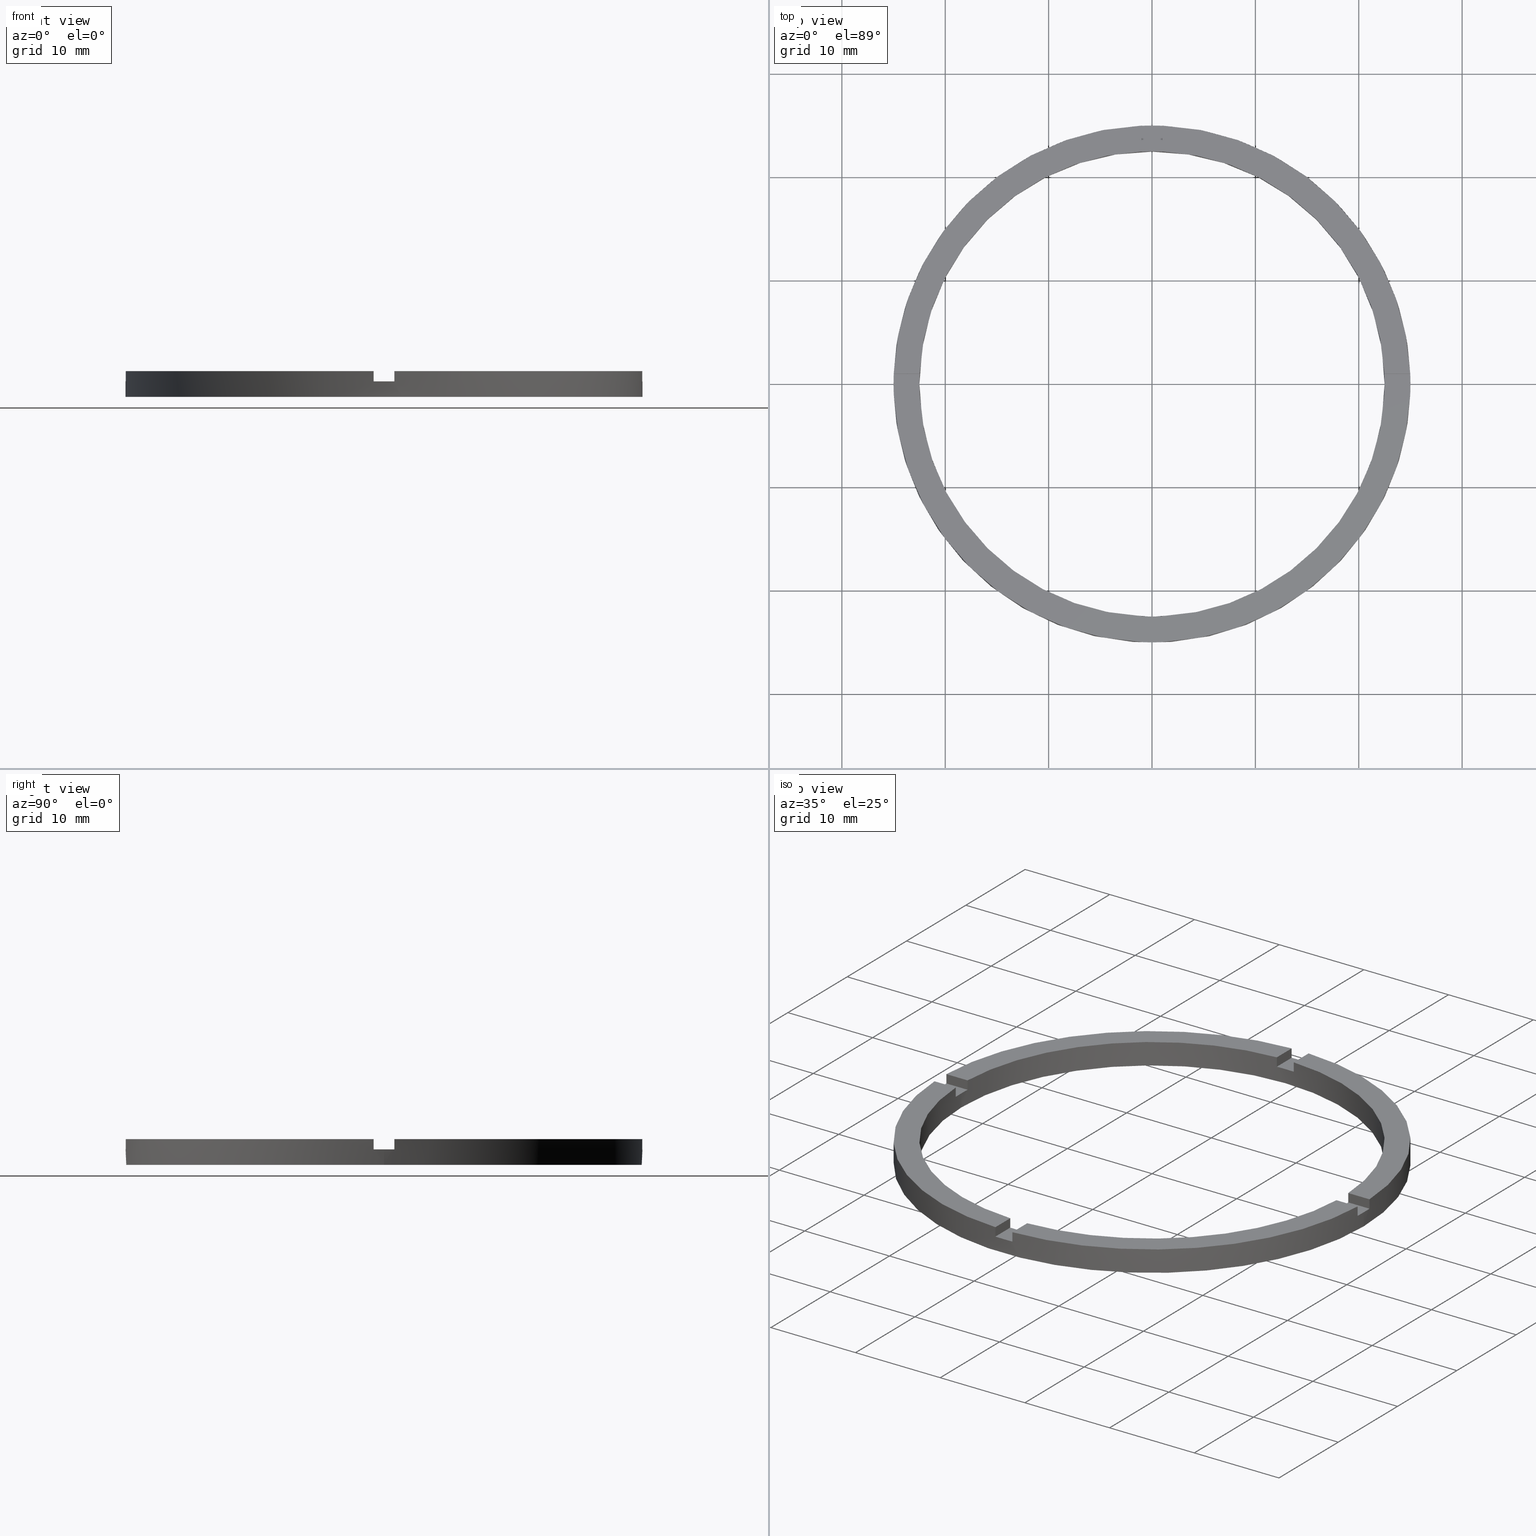
[diagram: canonical four-view strip — front | top / right | iso, engineering-drawing reading convention]
A machine part, canonical four-view strip (front | top / right | iso — engineering-drawing reading convention). The complete STEP part file that produces these views, byte-faithful:
ISO-10303-21;
HEADER;
FILE_DESCRIPTION (( 'STEP AP203' ),
    '1' );
FILE_NAME ('514105.step',
    '2024-12-26T02:37:58',
    ( 'MSI' ),
    ( '' ),
    'SwSTEP 2.0',
    'SolidWorks 2020',
    '' );
FILE_SCHEMA (( 'CONFIG_CONTROL_DESIGN' ));
ENDSEC;

DATA;
#1 = VERTEX_POINT ( 'NONE', #306 ) ;
#2 = CARTESIAN_POINT ( 'NONE',  ( -22.47776679298902636, 0.9999999999999744649, 2.500000000000000000 ) ) ;
#3 = DIRECTION ( 'NONE',  ( -0.000000000000000000, -0.000000000000000000, -1.000000000000000000 ) ) ;
#4 = DIRECTION ( 'NONE',  ( 0.000000000000000000, -0.000000000000000000, 1.000000000000000000 ) ) ;
#5 = CARTESIAN_POINT ( 'NONE',  ( 24.97999199359360034, 0.9999999999998425704, 2.500000000000000000 ) ) ;
#6 = ORIENTED_EDGE ( 'NONE', *, *, #239, .F. ) ;
#7 = VERTEX_POINT ( 'NONE', #402 ) ;
#8 = AXIS2_PLACEMENT_3D ( 'NONE', #136, #207, #53 ) ;
#9 = ORIENTED_EDGE ( 'NONE', *, *, #651, .F. ) ;
#10 = EDGE_CURVE ( 'NONE', #615, #525, #723, .T. ) ;
#11 = CARTESIAN_POINT ( 'NONE',  ( 0.9999999999999740208, 22.47776679298902636, 2.500000000000000000 ) ) ;
#12 = DIRECTION ( 'NONE',  ( 0.000000000000000000, 0.000000000000000000, 1.000000000000000000 ) ) ;
#13 = ORIENTED_EDGE ( 'NONE', *, *, #317, .F. ) ;
#14 = EDGE_LOOP ( 'NONE', ( #543, #728, #6, #285 ) ) ;
#15 = DIRECTION ( 'NONE',  ( 0.000000000000000000, 0.000000000000000000, 1.000000000000000000 ) ) ;
#16 = AXIS2_PLACEMENT_3D ( 'NONE', #551, #469, #712 ) ;
#17 = ORIENTED_EDGE ( 'NONE', *, *, #262, .T. ) ;
#18 = ORIENTED_EDGE ( 'NONE', *, *, #31, .F. ) ;
#19 = ORIENTED_EDGE ( 'NONE', *, *, #85, .F. ) ;
#20 = AXIS2_PLACEMENT_3D ( 'NONE', #597, #776, #622 ) ;
#21 = CARTESIAN_POINT ( 'NONE',  ( 25.00000000000000000, 3.061616997868383043E-15, 2.500000000000000000 ) ) ;
#22 = ORIENTED_EDGE ( 'NONE', *, *, #344, .T. ) ;
#23 = PERSON_AND_ORGANIZATION_ROLE ( 'creator' ) ;
#24 = ORIENTED_EDGE ( 'NONE', *, *, #239, .T. ) ;
#25 = CARTESIAN_POINT ( 'NONE',  ( 0.000000000000000000, 0.000000000000000000, 2.500000000000000000 ) ) ;
#26 = DIRECTION ( 'NONE',  ( 1.000000000000000000, 0.000000000000000000, 0.000000000000000000 ) ) ;
#27 = CARTESIAN_POINT ( 'NONE',  ( 0.000000000000000000, 0.000000000000000000, 2.500000000000000000 ) ) ;
#28 = PERSON_AND_ORGANIZATION_ROLE ( 'design_owner' ) ;
#29 = CARTESIAN_POINT ( 'NONE',  ( -22.47776679298902636, -1.000000000000025535, 2.500000000000000000 ) ) ;
#30 = ADVANCED_FACE ( 'NONE', ( #714 ), #198, .F. ) ;
#31 = EDGE_CURVE ( 'NONE', #57, #7, #452, .T. ) ;
#32 = CARTESIAN_POINT ( 'NONE',  ( 0.000000000000000000, 0.000000000000000000, 2.500000000000000000 ) ) ;
#33 = CARTESIAN_POINT ( 'NONE',  ( -15.00000000000018652, -1.000000000000024203, 1.500000000000000000 ) ) ;
#34 = CC_DESIGN_PERSON_AND_ORGANIZATION_ASSIGNMENT ( #642, #28, ( #559 ) ) ;
#35 = DIRECTION ( 'NONE',  ( 0.000000000000000000, 0.000000000000000000, 1.000000000000000000 ) ) ;
#36 = CARTESIAN_POINT ( 'NONE',  ( 0.9999999999999740208, 22.47776679298902636, 2.500000000000000000 ) ) ;
#37 = ORIENTED_EDGE ( 'NONE', *, *, #39, .F. ) ;
#38 = ORIENTED_EDGE ( 'NONE', *, *, #618, .T. ) ;
#39 = EDGE_CURVE ( 'NONE', #1, #451, #742, .T. ) ;
#40 = ORIENTED_EDGE ( 'NONE', *, *, #541, .T. ) ;
#41 = CARTESIAN_POINT ( 'NONE',  ( -15.00000000000018652, 0.9999999999999756861, 1.500000000000000000 ) ) ;
#42 = ORIENTED_EDGE ( 'NONE', *, *, #361, .T. ) ;
#43 = ORIENTED_EDGE ( 'NONE', *, *, #730, .F. ) ;
#44 = AXIS2_PLACEMENT_3D ( 'NONE', #357, #605, #600 ) ;
#45 = ORIENTED_EDGE ( 'NONE', *, *, #378, .F. ) ;
#46 = AXIS2_PLACEMENT_3D ( 'NONE', #516, #263, #433 ) ;
#47 = DIRECTION ( 'NONE',  ( 0.000000000000000000, 0.000000000000000000, 1.000000000000000000 ) ) ;
#48 = CARTESIAN_POINT ( 'NONE',  ( 24.97999199359358968, -1.000000000000157430, 1.500000000000000000 ) ) ;
#49 = ADVANCED_FACE ( 'NONE', ( #715 ), #102, .T. ) ;
#50 = EDGE_LOOP ( 'NONE', ( #386, #485, #430, #413 ) ) ;
#51 = ORIENTED_EDGE ( 'NONE', *, *, #321, .F. ) ;
#52 = EDGE_CURVE ( 'NONE', #7, #375, #731, .T. ) ;
#53 = DIRECTION ( 'NONE',  ( 1.000000000000000000, 0.000000000000000000, -0.000000000000000000 ) ) ;
#54 = AXIS2_PLACEMENT_3D ( 'NONE', #277, #686, #630 ) ;
#55 = ORIENTED_EDGE ( 'NONE', *, *, #10, .T. ) ;
#56 = PLANE ( 'NONE',  #484 ) ;
#57 = VERTEX_POINT ( 'NONE', #351 ) ;
#58 = CARTESIAN_POINT ( 'NONE',  ( 0.9999999999998395728, -24.97999199359360034, 2.500000000000000000 ) ) ;
#59 = DIRECTION ( 'NONE',  ( -1.000000000000000000, -4.336808689942018352E-17, -0.000000000000000000 ) ) ;
#60 = APPROVAL ( #726, 'δָ��' ) ;
#61 = ORIENTED_EDGE ( 'NONE', *, *, #571, .F. ) ;
#62 = DIRECTION ( 'NONE',  ( 0.000000000000000000, 0.000000000000000000, 1.000000000000000000 ) ) ;
#63 = DIRECTION ( 'NONE',  ( 0.000000000000000000, 0.000000000000000000, 1.000000000000000000 ) ) ;
#64 = DIRECTION ( 'NONE',  ( 1.000000000000000000, 0.000000000000000000, 0.000000000000000000 ) ) ;
#65 = EDGE_CURVE ( 'NONE', #685, #372, #734, .T. ) ;
#66 = PERSON_AND_ORGANIZATION_ROLE ( 'design_supplier' ) ;
#67 = AXIS2_PLACEMENT_3D ( 'NONE', #25, #653, #518 ) ;
#68 = CARTESIAN_POINT ( 'NONE',  ( 22.47776679298901925, -1.000000000000157652, 2.500000000000000000 ) ) ;
#69 = EDGE_CURVE ( 'NONE', #508, #155, #720, .T. ) ;
#70 = ADVANCED_FACE ( 'NONE', ( #204, #190 ), #56, .F. ) ;
#71 = CARTESIAN_POINT ( 'NONE',  ( 0.9999999999998382405, -15.00000000000018119, 2.500000000000000000 ) ) ;
#72 = EDGE_CURVE ( 'NONE', #159, #161, #192, .T. ) ;
#73 = CARTESIAN_POINT ( 'NONE',  ( -1.000000000000025979, 24.97999199359359679, 2.500000000000000000 ) ) ;
#74 = AXIS2_PLACEMENT_3D ( 'NONE', #340, #468, #626 ) ;
#75 = ORIENTED_EDGE ( 'NONE', *, *, #578, .F. ) ;
#76 = DIRECTION ( 'NONE',  ( 1.000000000000000000, 0.000000000000000000, 0.000000000000000000 ) ) ;
#77 = DIRECTION ( 'NONE',  ( -0.000000000000000000, -0.000000000000000000, -1.000000000000000000 ) ) ;
#78 = CC_DESIGN_PERSON_AND_ORGANIZATION_ASSIGNMENT ( #132, #23, ( #749 ) ) ;
#79 = DIRECTION ( 'NONE',  ( 0.000000000000000000, 0.000000000000000000, 1.000000000000000000 ) ) ;
#80 = DIRECTION ( 'NONE',  ( -0.000000000000000000, 0.000000000000000000, 1.000000000000000000 ) ) ;
#81 = CARTESIAN_POINT ( 'NONE',  ( 0.000000000000000000, 0.000000000000000000, 1.500000000000000000 ) ) ;
#82 = ORIENTED_EDGE ( 'NONE', *, *, #251, .T. ) ;
#83 = CARTESIAN_POINT ( 'NONE',  ( 0.9999999999998391287, -22.47776679298903346, 1.500000000000000000 ) ) ;
#84 = DIRECTION ( 'NONE',  ( 0.000000000000000000, 0.000000000000000000, 1.000000000000000000 ) ) ;
#85 = EDGE_CURVE ( 'NONE', #525, #295, #477, .T. ) ;
#86 = EDGE_CURVE ( 'NONE', #159, #110, #504, .T. ) ;
#87 = CARTESIAN_POINT ( 'NONE',  ( -1.000000000000025979, 24.97999199359359679, 1.500000000000000000 ) ) ;
#88 = CARTESIAN_POINT ( 'NONE',  ( -25.00000000000000000, 0.000000000000000000, 2.500000000000000000 ) ) ;
#89 = CARTESIAN_POINT ( 'NONE',  ( 24.97999199359360034, 0.9999999999998425704, 2.500000000000000000 ) ) ;
#90 = AXIS2_PLACEMENT_3D ( 'NONE', #32, #679, #612 ) ;
#91 = EDGE_CURVE ( 'NONE', #410, #457, #235, .T. ) ;
#92 = CARTESIAN_POINT ( 'NONE',  ( -24.97999199359359679, 0.9999999999999740208, 1.500000000000000000 ) ) ;
#93 = DIRECTION ( 'NONE',  ( -0.000000000000000000, -0.000000000000000000, -1.000000000000000000 ) ) ;
#94 = AXIS2_PLACEMENT_3D ( 'NONE', #620, #127, #727 ) ;
#95 = EDGE_CURVE ( 'NONE', #586, #234, #506, .T. ) ;
#96 = CARTESIAN_POINT ( 'NONE',  ( 0.000000000000000000, 0.000000000000000000, 0.000000000000000000 ) ) ;
#97 = DIRECTION ( 'NONE',  ( 1.000000000000000000, 0.000000000000000000, 0.000000000000000000 ) ) ;
#98 = CARTESIAN_POINT ( 'NONE',  ( 0.000000000000000000, 0.000000000000000000, 1.500000000000000000 ) ) ;
#99 = DIRECTION ( 'NONE',  ( 1.000000000000000000, 0.000000000000000000, 0.000000000000000000 ) ) ;
#100 = APPROVAL ( #313, 'δָ��' ) ;
#101 = CARTESIAN_POINT ( 'NONE',  ( -24.97999199359359679, 0.9999999999999740208, 2.500000000000000000 ) ) ;
#102 = PLANE ( 'NONE',  #288 ) ;
#103 = SECURITY_CLASSIFICATION_LEVEL ( 'unclassified' ) ;
#104 = CARTESIAN_POINT ( 'NONE',  ( -1.000000000000160982, -22.47776679298901925, 2.500000000000000000 ) ) ;
#105 = ADVANCED_FACE ( 'NONE', ( #496 ), #591, .T. ) ;
#106 = DIRECTION ( 'NONE',  ( 0.000000000000000000, 0.000000000000000000, 1.000000000000000000 ) ) ;
#107 = EDGE_LOOP ( 'NONE', ( #18, #690, #124, #213, #200, #215, #648, #164, #445, #455, #533, #271 ) ) ;
#108 = EDGE_CURVE ( 'NONE', #261, #254, #764, .T. ) ;
#109 = EDGE_LOOP ( 'NONE', ( #538, #266, #708, #19, #721, #435, #570, #274, #697, #694, #458, #267 ) ) ;
#110 = VERTEX_POINT ( 'NONE', #779 ) ;
#111 = VERTEX_POINT ( 'NONE', #766 ) ;
#112 = EDGE_LOOP ( 'NONE', ( #195, #169, #534, #174, #9, #209, #467, #188, #61, #55, #717, #75 ) ) ;
#113 = AXIS2_PLACEMENT_3D ( 'NONE', #773, #80, #362 ) ;
#114 = APPROVAL_DATE_TIME ( #645, #283 ) ;
#115 =( GEOMETRIC_REPRESENTATION_CONTEXT ( 3 ) GLOBAL_UNCERTAINTY_ASSIGNED_CONTEXT ( ( #352 ) ) GLOBAL_UNIT_ASSIGNED_CONTEXT ( ( #252, #257, #272 ) ) REPRESENTATION_CONTEXT ( 'NONE', 'WORKASPACE' ) );
#116 = CARTESIAN_POINT ( 'NONE',  ( 14.99999999999999645, 0.9999999999998421263, 1.500000000000000000 ) ) ;
#117 = APPROVAL_PERSON_ORGANIZATION ( #408, #60, #611 ) ;
#118 = CARTESIAN_POINT ( 'NONE',  ( 0.000000000000000000, 0.000000000000000000, 2.500000000000000000 ) ) ;
#119 = DIRECTION ( 'NONE',  ( 0.000000000000000000, 0.000000000000000000, 1.000000000000000000 ) ) ;
#120 = COORDINATED_UNIVERSAL_TIME_OFFSET ( 8, 0, .AHEAD. ) ;
#121 = AXIS2_PLACEMENT_3D ( 'NONE', #373, #470, #147 ) ;
#122 = APPROVAL_DATE_TIME ( #385, #100 ) ;
#123 = DIRECTION ( 'NONE',  ( 1.000000000000000000, 0.000000000000000000, 0.000000000000000000 ) ) ;
#124 = ORIENTED_EDGE ( 'NONE', *, *, #327, .T. ) ;
#125 = PERSON_AND_ORGANIZATION ( #377, #129 ) ;
#126 = DIRECTION ( 'NONE',  ( 0.000000000000000000, -0.000000000000000000, 1.000000000000000000 ) ) ;
#127 = DIRECTION ( 'NONE',  ( 1.734723475976807341E-16, -1.000000000000000000, 0.000000000000000000 ) ) ;
#128 = DATE_AND_TIME ( #652, #138 ) ;
#129 = ORGANIZATION ( 'δָ��', 'δָ��', '' ) ;
#130 = EDGE_CURVE ( 'NONE', #159, #644, #756, .T. ) ;
#131 = VECTOR ( 'NONE', #444, 1000.000000000000000 ) ;
#132 = PERSON_AND_ORGANIZATION ( #377, #129 ) ;
#133 = CIRCLE ( 'NONE', #769, 25.00000000000000000 ) ;
#134 = SHAPE_DEFINITION_REPRESENTATION ( #409, #396 ) ;
#135 = CIRCLE ( 'NONE', #325, 22.50000000000000355 ) ;
#136 = CARTESIAN_POINT ( 'NONE',  ( 0.000000000000000000, 0.000000000000000000, 1.500000000000000000 ) ) ;
#137 = LINE ( 'NONE', #226, #403 ) ;
#138 = LOCAL_TIME ( 10, 37, 58.00000000000000000, #671 ) ;
#139 = FACE_OUTER_BOUND ( 'NONE', #242, .T. ) ;
#140 = VECTOR ( 'NONE', #282, 1000.000000000000000 ) ;
#141 = CALENDAR_DATE ( 2024, 26, 12 ) ;
#142 = VERTEX_POINT ( 'NONE', #48 ) ;
#143 = CARTESIAN_POINT ( 'NONE',  ( -1.000000000000025979, 22.47776679298902636, 1.500000000000000000 ) ) ;
#144 = FACE_OUTER_BOUND ( 'NONE', #566, .T. ) ;
#145 = PLANE ( 'NONE',  #428 ) ;
#146 = COORDINATED_UNIVERSAL_TIME_OFFSET ( 8, 0, .AHEAD. ) ;
#147 = DIRECTION ( 'NONE',  ( -1.000000000000000000, 0.000000000000000000, 0.000000000000000000 ) ) ;
#148 = VECTOR ( 'NONE', #157, 1000.000000000000000 ) ;
#149 = LOCAL_TIME ( 10, 37, 58.00000000000000000, #120 ) ;
#150 = VECTOR ( 'NONE', #47, 1000.000000000000000 ) ;
#151 = PERSON_AND_ORGANIZATION ( #377, #129 ) ;
#152 = EDGE_CURVE ( 'NONE', #586, #703, #233, .T. ) ;
#153 = FACE_OUTER_BOUND ( 'NONE', #189, .T. ) ;
#154 = LOCAL_TIME ( 10, 37, 58.00000000000000000, #665 ) ;
#155 = VERTEX_POINT ( 'NONE', #775 ) ;
#156 = CIRCLE ( 'NONE', #584, 25.00000000000000000 ) ;
#157 = DIRECTION ( 'NONE',  ( -0.000000000000000000, -0.000000000000000000, -1.000000000000000000 ) ) ;
#158 = CARTESIAN_POINT ( 'NONE',  ( -22.50000000000000355, 0.000000000000000000, 2.500000000000000000 ) ) ;
#159 = VERTEX_POINT ( 'NONE', #89 ) ;
#160 = VECTOR ( 'NONE', #762, 1000.000000000000000 ) ;
#161 = VERTEX_POINT ( 'NONE', #380 ) ;
#162 = FACE_OUTER_BOUND ( 'NONE', #774, .T. ) ;
#163 = LINE ( 'NONE', #695, #150 ) ;
#164 = ORIENTED_EDGE ( 'NONE', *, *, #765, .F. ) ;
#165 = DIRECTION ( 'NONE',  ( 1.000000000000000000, 0.000000000000000000, 0.000000000000000000 ) ) ;
#166 = FACE_OUTER_BOUND ( 'NONE', #232, .T. ) ;
#167 = DIRECTION ( 'NONE',  ( -1.000000000000000000, -1.734723475976807341E-16, 0.000000000000000000 ) ) ;
#168 = LINE ( 'NONE', #58, #173 ) ;
#169 = ORIENTED_EDGE ( 'NONE', *, *, #495, .T. ) ;
#170 = VECTOR ( 'NONE', #339, 1000.000000000000000 ) ;
#171 = ORIENTED_EDGE ( 'NONE', *, *, #260, .F. ) ;
#172 = EDGE_CURVE ( 'NONE', #508, #703, #231, .T. ) ;
#173 = VECTOR ( 'NONE', #3, 1000.000000000000000 ) ;
#174 = ORIENTED_EDGE ( 'NONE', *, *, #321, .T. ) ;
#175 = AXIS2_PLACEMENT_3D ( 'NONE', #425, #609, #26 ) ;
#176 = LINE ( 'NONE', #238, #693 ) ;
#177 = CARTESIAN_POINT ( 'NONE',  ( -1.000000000000025979, 15.00000000000000178, 2.500000000000000000 ) ) ;
#178 = CARTESIAN_POINT ( 'NONE',  ( 0.000000000000000000, 0.000000000000000000, 1.500000000000000000 ) ) ;
#179 = VECTOR ( 'NONE', #658, 1000.000000000000000 ) ;
#180 = VECTOR ( 'NONE', #412, 1000.000000000000000 ) ;
#181 = ORIENTED_EDGE ( 'NONE', *, *, #327, .F. ) ;
#182 = ORIENTED_EDGE ( 'NONE', *, *, #481, .F. ) ;
#183 = APPLICATION_PROTOCOL_DEFINITION ( 'international standard', 'config_control_design', 1994, #634 ) ;
#184 = ORIENTED_EDGE ( 'NONE', *, *, #108, .T. ) ;
#185 = ORIENTED_EDGE ( 'NONE', *, *, #259, .F. ) ;
#186 = ORIENTED_EDGE ( 'NONE', *, *, #91, .F. ) ;
#187 = DIRECTION ( 'NONE',  ( -0.000000000000000000, -1.000000000000000000, -0.000000000000000000 ) ) ;
#188 = ORIENTED_EDGE ( 'NONE', *, *, #628, .T. ) ;
#189 = EDGE_LOOP ( 'NONE', ( #767, #240, #781, #758 ) ) ;
#190 = FACE_BOUND ( 'NONE', #738, .T. ) ;
#191 = DIRECTION ( 'NONE',  ( 0.000000000000000000, 0.000000000000000000, 1.000000000000000000 ) ) ;
#192 = LINE ( 'NONE', #5, #206 ) ;
#193 = DIRECTION ( 'NONE',  ( 0.000000000000000000, 0.000000000000000000, 1.000000000000000000 ) ) ;
#194 = DIRECTION ( 'NONE',  ( 1.301042606982605321E-16, -1.000000000000000000, 0.000000000000000000 ) ) ;
#195 = ORIENTED_EDGE ( 'NONE', *, *, #599, .F. ) ;
#196 = VECTOR ( 'NONE', #555, 1000.000000000000000 ) ;
#197 = ORIENTED_EDGE ( 'NONE', *, *, #610, .F. ) ;
#198 = CYLINDRICAL_SURFACE ( 'NONE', #44, 22.50000000000000355 ) ;
#199 = CIRCLE ( 'NONE', #770, 22.50000000000000355 ) ;
#200 = ORIENTED_EDGE ( 'NONE', *, *, #317, .T. ) ;
#201 = APPLICATION_CONTEXT ( 'configuration controlled 3d designs of mechanical parts and assemblies' ) ;
#202 = PLANE ( 'NONE',  #624 ) ;
#203 = ORIENTED_EDGE ( 'NONE', *, *, #269, .F. ) ;
#204 = FACE_OUTER_BOUND ( 'NONE', #678, .T. ) ;
#205 = CIRCLE ( 'NONE', #573, 25.00000000000000000 ) ;
#206 = VECTOR ( 'NONE', #93, 1000.000000000000000 ) ;
#207 = DIRECTION ( 'NONE',  ( 0.000000000000000000, 0.000000000000000000, 1.000000000000000000 ) ) ;
#208 = LINE ( 'NONE', #595, #196 ) ;
#209 = ORIENTED_EDGE ( 'NONE', *, *, #39, .T. ) ;
#210 = MANIFOLD_SOLID_BREP ( '�г�-����1', #706 ) ;
#211 = DIRECTION ( 'NONE',  ( 0.000000000000000000, 0.000000000000000000, 1.000000000000000000 ) ) ;
#212 = DIRECTION ( 'NONE',  ( 1.000000000000000000, 0.000000000000000000, 0.000000000000000000 ) ) ;
#213 = ORIENTED_EDGE ( 'NONE', *, *, #621, .F. ) ;
#214 = FACE_OUTER_BOUND ( 'NONE', #502, .T. ) ;
#215 = ORIENTED_EDGE ( 'NONE', *, *, #701, .F. ) ;
#216 = VECTOR ( 'NONE', #614, 1000.000000000000000 ) ;
#217 = CARTESIAN_POINT ( 'NONE',  ( 0.9999999999999740208, 24.97999199359359679, 2.500000000000000000 ) ) ;
#218 = ADVANCED_FACE ( 'NONE', ( #759 ), #503, .T. ) ;
#219 = LINE ( 'NONE', #41, #222 ) ;
#220 = DIRECTION ( 'NONE',  ( 1.000000000000000000, 0.000000000000000000, 0.000000000000000000 ) ) ;
#221 = DIRECTION ( 'NONE',  ( 1.000000000000000000, 0.000000000000000000, 0.000000000000000000 ) ) ;
#222 = VECTOR ( 'NONE', #639, 1000.000000000000000 ) ;
#223 = VECTOR ( 'NONE', #596, 1000.000000000000000 ) ;
#224 = DIRECTION ( 'NONE',  ( 1.301042606982605321E-16, -1.000000000000000000, 0.000000000000000000 ) ) ;
#225 = VECTOR ( 'NONE', #224, 1000.000000000000000 ) ;
#226 = CARTESIAN_POINT ( 'NONE',  ( 22.47776679298903346, 0.9999999999998423483, 2.500000000000000000 ) ) ;
#227 = VECTOR ( 'NONE', #299, 1000.000000000000000 ) ;
#228 = CARTESIAN_POINT ( 'NONE',  ( 0.000000000000000000, 0.000000000000000000, 1.500000000000000000 ) ) ;
#229 = AXIS2_PLACEMENT_3D ( 'NONE', #480, #549, #590 ) ;
#230 = ADVANCED_FACE ( 'NONE', ( #237 ), #483, .F. ) ;
#231 = LINE ( 'NONE', #333, #500 ) ;
#232 = EDGE_LOOP ( 'NONE', ( #284, #725, #540, #181 ) ) ;
#233 = CIRCLE ( 'NONE', #526, 22.50000000000000355 ) ;
#234 = VERTEX_POINT ( 'NONE', #83 ) ;
#235 = LINE ( 'NONE', #492, #491 ) ;
#236 = CARTESIAN_POINT ( 'NONE',  ( 0.000000000000000000, 0.000000000000000000, 2.500000000000000000 ) ) ;
#237 = FACE_OUTER_BOUND ( 'NONE', #633, .T. ) ;
#238 = CARTESIAN_POINT ( 'NONE',  ( -24.97999199359359679, -1.000000000000025979, 2.500000000000000000 ) ) ;
#239 = EDGE_CURVE ( 'NONE', #161, #460, #747, .T. ) ;
#240 = ORIENTED_EDGE ( 'NONE', *, *, #651, .T. ) ;
#241 = ORIENTED_EDGE ( 'NONE', *, *, #730, .T. ) ;
#242 = EDGE_LOOP ( 'NONE', ( #184, #729, #278, #276, #594, #273 ) ) ;
#243 = PLANE ( 'NONE',  #264 ) ;
#244 = DIRECTION ( 'NONE',  ( 1.000000000000000000, 1.301042606982605321E-16, 0.000000000000000000 ) ) ;
#245 = VERTEX_POINT ( 'NONE', #676 ) ;
#246 = DIRECTION ( 'NONE',  ( -0.000000000000000000, -0.000000000000000000, -1.000000000000000000 ) ) ;
#247 = CARTESIAN_POINT ( 'NONE',  ( 22.47776679298903346, 0.9999999999998423483, 1.500000000000000000 ) ) ;
#248 = CARTESIAN_POINT ( 'NONE',  ( 0.000000000000000000, 0.000000000000000000, 0.000000000000000000 ) ) ;
#249 = CARTESIAN_POINT ( 'NONE',  ( 0.9999999999998391287, -22.47776679298903346, 2.500000000000000000 ) ) ;
#250 = DIRECTION ( 'NONE',  ( 1.000000000000000000, 0.000000000000000000, 0.000000000000000000 ) ) ;
#251 = EDGE_CURVE ( 'NONE', #510, #644, #748, .T. ) ;
#252 =( LENGTH_UNIT ( ) NAMED_UNIT ( * ) SI_UNIT ( .MILLI., .METRE. ) );
#253 = DIRECTION ( 'NONE',  ( 0.000000000000000000, 0.000000000000000000, 1.000000000000000000 ) ) ;
#254 = VERTEX_POINT ( 'NONE', #330 ) ;
#255 = EDGE_CURVE ( 'NONE', #615, #261, #219, .T. ) ;
#256 = CARTESIAN_POINT ( 'NONE',  ( 0.000000000000000000, 0.000000000000000000, 1.500000000000000000 ) ) ;
#257 =( NAMED_UNIT ( * ) PLANE_ANGLE_UNIT ( ) SI_UNIT ( $, .RADIAN. ) );
#258 = DIRECTION ( 'NONE',  ( 0.000000000000000000, 0.000000000000000000, 1.000000000000000000 ) ) ;
#259 = EDGE_CURVE ( 'NONE', #375, #7, #493, .T. ) ;
#260 = EDGE_CURVE ( 'NONE', #57, #161, #751, .T. ) ;
#261 = VERTEX_POINT ( 'NONE', #92 ) ;
#262 = EDGE_CURVE ( 'NONE', #372, #384, #494, .T. ) ;
#263 = DIRECTION ( 'NONE',  ( 1.000000000000000000, -0.000000000000000000, 0.000000000000000000 ) ) ;
#264 = AXIS2_PLACEMENT_3D ( 'NONE', #704, #782, #711 ) ;
#265 = PERSON_AND_ORGANIZATION_ROLE ( 'creator' ) ;
#266 = ORIENTED_EDGE ( 'NONE', *, *, #599, .T. ) ;
#267 = ORIENTED_EDGE ( 'NONE', *, *, #172, .F. ) ;
#268 = ORIENTED_EDGE ( 'NONE', *, *, #369, .T. ) ;
#269 = EDGE_CURVE ( 'NONE', #783, #447, #754, .T. ) ;
#270 = ORIENTED_EDGE ( 'NONE', *, *, #495, .F. ) ;
#271 = ORIENTED_EDGE ( 'NONE', *, *, #259, .T. ) ;
#272 =( NAMED_UNIT ( * ) SI_UNIT ( $, .STERADIAN. ) SOLID_ANGLE_UNIT ( ) );
#273 = ORIENTED_EDGE ( 'NONE', *, *, #255, .T. ) ;
#274 = ORIENTED_EDGE ( 'NONE', *, *, #517, .F. ) ;
#275 = ORIENTED_EDGE ( 'NONE', *, *, #420, .T. ) ;
#276 = ORIENTED_EDGE ( 'NONE', *, *, #302, .F. ) ;
#277 = CARTESIAN_POINT ( 'NONE',  ( 0.000000000000000000, 0.000000000000000000, 2.500000000000000000 ) ) ;
#278 = ORIENTED_EDGE ( 'NONE', *, *, #378, .T. ) ;
#279 = CARTESIAN_POINT ( 'NONE',  ( -1.000000000000160538, -24.97999199359358968, 2.500000000000000000 ) ) ;
#280 = ADVANCED_FACE ( 'NONE', ( #669 ), #383, .T. ) ;
#281 = DIRECTION ( 'NONE',  ( 0.000000000000000000, 0.000000000000000000, 1.000000000000000000 ) ) ;
#282 = DIRECTION ( 'NONE',  ( -1.301042606982605321E-16, 1.000000000000000000, -0.000000000000000000 ) ) ;
#283 = APPROVAL ( #507, 'δָ��' ) ;
#284 = ORIENTED_EDGE ( 'NONE', *, *, #420, .F. ) ;
#285 = ORIENTED_EDGE ( 'NONE', *, *, #72, .F. ) ;
#286 = PLANE ( 'NONE',  #710 ) ;
#287 = EDGE_CURVE ( 'NONE', #254, #375, #682, .T. ) ;
#288 = AXIS2_PLACEMENT_3D ( 'NONE', #490, #552, #733 ) ;
#289 = ADVANCED_FACE ( 'NONE', ( #443 ), #145, .T. ) ;
#290 = DIRECTION ( 'NONE',  ( 0.000000000000000000, 0.000000000000000000, 1.000000000000000000 ) ) ;
#291 = PRODUCT_DEFINITION ( 'δ֪', '', #749, #304 ) ;
#292 = CARTESIAN_POINT ( 'NONE',  ( 14.99999999999999645, -1.000000000000157874, 1.500000000000000000 ) ) ;
#293 = CARTESIAN_POINT ( 'NONE',  ( -1.000000000000025979, 15.00000000000000178, 1.500000000000000000 ) ) ;
#294 = AXIS2_PLACEMENT_3D ( 'NONE', #293, #341, #79 ) ;
#295 = VERTEX_POINT ( 'NONE', #371 ) ;
#296 = CARTESIAN_POINT ( 'NONE',  ( 14.99999999999999645, 0.9999999999998421263, 2.500000000000000000 ) ) ;
#297 = ORIENTED_EDGE ( 'NONE', *, *, #152, .F. ) ;
#298 = ORIENTED_EDGE ( 'NONE', *, *, #524, .T. ) ;
#299 = DIRECTION ( 'NONE',  ( -0.000000000000000000, -0.000000000000000000, -1.000000000000000000 ) ) ;
#300 = ORIENTED_EDGE ( 'NONE', *, *, #269, .T. ) ;
#301 = CARTESIAN_POINT ( 'NONE',  ( 0.000000000000000000, 0.000000000000000000, 0.000000000000000000 ) ) ;
#302 = EDGE_CURVE ( 'NONE', #525, #564, #441, .T. ) ;
#303 = ORIENTED_EDGE ( 'NONE', *, *, #701, .T. ) ;
#304 = DESIGN_CONTEXT ( 'detailed design', #201, 'design' ) ;
#305 = ORIENTED_EDGE ( 'NONE', *, *, #628, .F. ) ;
#306 = CARTESIAN_POINT ( 'NONE',  ( 0.9999999999999740208, 22.47776679298902636, 1.500000000000000000 ) ) ;
#307 = ORIENTED_EDGE ( 'NONE', *, *, #342, .F. ) ;
#308 = DIRECTION ( 'NONE',  ( -0.000000000000000000, -0.000000000000000000, -1.000000000000000000 ) ) ;
#309 = DIRECTION ( 'NONE',  ( 0.000000000000000000, 0.000000000000000000, 1.000000000000000000 ) ) ;
#310 = CARTESIAN_POINT ( 'NONE',  ( -22.47776679298902636, -1.000000000000025535, 1.500000000000000000 ) ) ;
#311 = ORIENTED_EDGE ( 'NONE', *, *, #621, .T. ) ;
#312 = EDGE_LOOP ( 'NONE', ( #298, #771, #37, #42 ) ) ;
#313 = APPROVAL_STATUS ( 'not_yet_approved' ) ;
#314 = DIRECTION ( 'NONE',  ( 0.000000000000000000, -0.000000000000000000, 1.000000000000000000 ) ) ;
#315 = DIRECTION ( 'NONE',  ( 1.000000000000000000, 0.000000000000000000, 0.000000000000000000 ) ) ;
#316 = DIRECTION ( 'NONE',  ( -1.301042606982605321E-16, 1.000000000000000000, -0.000000000000000000 ) ) ;
#317 = EDGE_CURVE ( 'NONE', #763, #636, #168, .T. ) ;
#318 = DATE_TIME_ROLE ( 'creation_date' ) ;
#319 = AXIS2_PLACEMENT_3D ( 'NONE', #512, #509, #64 ) ;
#320 = ADVANCED_FACE ( 'NONE', ( #162 ), #498, .F. ) ;
#321 = EDGE_CURVE ( 'NONE', #110, #643, #421, .T. ) ;
#322 = AXIS2_PLACEMENT_3D ( 'NONE', #81, #670, #221 ) ;
#323 = APPLICATION_PROTOCOL_DEFINITION ( 'international standard', 'config_control_design', 1994, #201 ) ;
#324 = CARTESIAN_POINT ( 'NONE',  ( -1.000000000000161871, -15.00000000000018119, 1.500000000000000000 ) ) ;
#325 = AXIS2_PLACEMENT_3D ( 'NONE', #301, #63, #99 ) ;
#326 = ORIENTED_EDGE ( 'NONE', *, *, #86, .F. ) ;
#327 = EDGE_CURVE ( 'NONE', #142, #692, #163, .T. ) ;
#328 = CARTESIAN_POINT ( 'NONE',  ( -22.47776679298902636, 0.9999999999999744649, 1.500000000000000000 ) ) ;
#329 = ADVANCED_FACE ( 'NONE', ( #144 ), #379, .F. ) ;
#330 = CARTESIAN_POINT ( 'NONE',  ( -25.00000000000000000, 0.000000000000000000, 1.500000000000000000 ) ) ;
#331 = VERTEX_POINT ( 'NONE', #73 ) ;
#332 = CARTESIAN_POINT ( 'NONE',  ( -1.000000000000161871, -15.00000000000018119, 1.500000000000000000 ) ) ;
#333 = CARTESIAN_POINT ( 'NONE',  ( 22.47776679298901925, -1.000000000000157652, 2.500000000000000000 ) ) ;
#334 = DIRECTION ( 'NONE',  ( -0.000000000000000000, -0.000000000000000000, -1.000000000000000000 ) ) ;
#335 = CARTESIAN_POINT ( 'NONE',  ( 0.000000000000000000, 0.000000000000000000, 2.500000000000000000 ) ) ;
#336 = CC_DESIGN_DATE_AND_TIME_ASSIGNMENT ( #128, #745, ( #588 ) ) ;
#337 = CC_DESIGN_APPROVAL ( #100, ( #588 ) ) ;
#338 = CARTESIAN_POINT ( 'NONE',  ( -1.000000000000160538, -24.97999199359358968, 1.500000000000000000 ) ) ;
#339 = DIRECTION ( 'NONE',  ( 1.000000000000000000, 4.336808689942018352E-17, 0.000000000000000000 ) ) ;
#340 = CARTESIAN_POINT ( 'NONE',  ( 14.99999999999999645, -1.000000000000157874, 1.500000000000000000 ) ) ;
#341 = DIRECTION ( 'NONE',  ( -1.000000000000000000, 0.000000000000000000, 0.000000000000000000 ) ) ;
#342 = EDGE_CURVE ( 'NONE', #783, #234, #440, .T. ) ;
#343 = DIRECTION ( 'NONE',  ( 1.000000000000000000, 0.000000000000000000, -0.000000000000000000 ) ) ;
#344 = EDGE_CURVE ( 'NONE', #331, #457, #156, .T. ) ;
#345 = AXIS2_PLACEMENT_3D ( 'NONE', #256, #191, #561 ) ;
#346 = CARTESIAN_POINT ( 'NONE',  ( -22.47776679298902636, 0.9999999999999744649, 2.500000000000000000 ) ) ;
#347 = AXIS2_PLACEMENT_3D ( 'NONE', #718, #12, #462 ) ;
#348 = CARTESIAN_POINT ( 'NONE',  ( -22.47776679298902636, -1.000000000000025535, 2.500000000000000000 ) ) ;
#349 = AXIS2_PLACEMENT_3D ( 'NONE', #580, #35, #123 ) ;
#350 = APPROVAL_ROLE ( '' ) ;
#351 = CARTESIAN_POINT ( 'NONE',  ( 25.00000000000000000, 3.061616997868383043E-15, 1.500000000000000000 ) ) ;
#352 = UNCERTAINTY_MEASURE_WITH_UNIT (LENGTH_MEASURE( 1.000000000000000082E-05 ), #252, 'distance_accuracy_value', 'NONE');
#353 = DIRECTION ( 'NONE',  ( 1.000000000000000000, 0.000000000000000000, 0.000000000000000000 ) ) ;
#354 = ADVANCED_FACE ( 'NONE', ( #657 ), #414, .F. ) ;
#355 = PRODUCT_RELATED_PRODUCT_CATEGORY ( 'detail', '', ( #559 ) ) ;
#356 = CARTESIAN_POINT ( 'NONE',  ( 22.47776679298901925, -1.000000000000157652, 1.500000000000000000 ) ) ;
#357 = CARTESIAN_POINT ( 'NONE',  ( 0.000000000000000000, 0.000000000000000000, 2.500000000000000000 ) ) ;
#358 = DIRECTION ( 'NONE',  ( 0.000000000000000000, 0.000000000000000000, 1.000000000000000000 ) ) ;
#359 = ADVANCED_FACE ( 'NONE', ( #418 ), #202, .F. ) ;
#360 = APPROVAL_ROLE ( '' ) ;
#361 = EDGE_CURVE ( 'NONE', #1, #510, #434, .T. ) ;
#362 = DIRECTION ( 'NONE',  ( 1.000000000000000000, 0.000000000000000000, 0.000000000000000000 ) ) ;
#363 = CARTESIAN_POINT ( 'NONE',  ( -15.00000000000018652, -1.000000000000024203, 2.500000000000000000 ) ) ;
#364 = AXIS2_PLACEMENT_3D ( 'NONE', #601, #308, #638 ) ;
#365 = EDGE_CURVE ( 'NONE', #643, #644, #677, .T. ) ;
#366 = EDGE_CURVE ( 'NONE', #685, #564, #699, .T. ) ;
#367 = CARTESIAN_POINT ( 'NONE',  ( -22.50000000000000355, 0.000000000000000000, 1.500000000000000000 ) ) ;
#368 = DIRECTION ( 'NONE',  ( -1.000000000000000000, 0.000000000000000000, 0.000000000000000000 ) ) ;
#369 = EDGE_CURVE ( 'NONE', #423, #685, #696, .T. ) ;
#370 = AXIS2_PLACEMENT_3D ( 'NONE', #394, #629, #482 ) ;
#371 = CARTESIAN_POINT ( 'NONE',  ( -22.50000000000000355, 0.000000000000000000, 0.000000000000000000 ) ) ;
#372 = VERTEX_POINT ( 'NONE', #613 ) ;
#373 = CARTESIAN_POINT ( 'NONE',  ( 0.000000000000000000, 0.000000000000000000, 2.500000000000000000 ) ) ;
#374 = CARTESIAN_POINT ( 'NONE',  ( 0.000000000000000000, 0.000000000000000000, 2.500000000000000000 ) ) ;
#375 = VERTEX_POINT ( 'NONE', #523 ) ;
#376 = PLANE ( 'NONE',  #74 ) ;
#377 = PERSON ( 'δָ��', 'δָ��', 'δָ��', ('δָ��'), ('δָ��'), ('δָ��') ) ;
#378 = EDGE_CURVE ( 'NONE', #245, #564, #684, .T. ) ;
#379 = PLANE ( 'NONE',  #722 ) ;
#380 = CARTESIAN_POINT ( 'NONE',  ( 24.97999199359360034, 0.9999999999998425704, 1.500000000000000000 ) ) ;
#381 = CC_DESIGN_DATE_AND_TIME_ASSIGNMENT ( #637, #318, ( #291 ) ) ;
#382 = CARTESIAN_POINT ( 'NONE',  ( -24.97999199359359679, 0.9999999999999740208, 2.500000000000000000 ) ) ;
#383 = PLANE ( 'NONE',  #370 ) ;
#384 = VERTEX_POINT ( 'NONE', #529 ) ;
#385 = DATE_AND_TIME ( #656, #400 ) ;
#386 = ORIENTED_EDGE ( 'NONE', *, *, #262, .F. ) ;
#387 = PERSON_AND_ORGANIZATION ( #377, #129 ) ;
#388 = APPROVAL_PERSON_ORGANIZATION ( #387, #283, #360 ) ;
#389 = DIRECTION ( 'NONE',  ( 1.000000000000000000, 0.000000000000000000, -0.000000000000000000 ) ) ;
#390 = CC_DESIGN_SECURITY_CLASSIFICATION ( #588, ( #749 ) ) ;
#391 = LINE ( 'NONE', #104, #655 ) ;
#392 = CARTESIAN_POINT ( 'NONE',  ( 0.000000000000000000, 0.000000000000000000, 1.500000000000000000 ) ) ;
#393 = CIRCLE ( 'NONE', #625, 25.00000000000000000 ) ;
#394 = CARTESIAN_POINT ( 'NONE',  ( 0.000000000000000000, 0.000000000000000000, 2.500000000000000000 ) ) ;
#395 = FACE_OUTER_BOUND ( 'NONE', #50, .T. ) ;
#396 = ADVANCED_BREP_SHAPE_REPRESENTATION ( '514105', ( #210, #603 ), #115 ) ;
#397 = CALENDAR_DATE ( 2024, 26, 12 ) ;
#398 = EDGE_CURVE ( 'NONE', #111, #451, #429, .T. ) ;
#399 = LINE ( 'NONE', #346, #661 ) ;
#400 = LOCAL_TIME ( 10, 37, 58.00000000000000000, #146 ) ;
#401 = VECTOR ( 'NONE', #77, 1000.000000000000000 ) ;
#402 = CARTESIAN_POINT ( 'NONE',  ( 25.00000000000000000, 3.061616997868383043E-15, 0.000000000000000000 ) ) ;
#403 = VECTOR ( 'NONE', #334, 1000.000000000000000 ) ;
#404 = EDGE_CURVE ( 'NONE', #423, #245, #176, .T. ) ;
#405 = CARTESIAN_POINT ( 'NONE',  ( 0.000000000000000000, 0.000000000000000000, 0.000000000000000000 ) ) ;
#406 = VECTOR ( 'NONE', #768, 1000.000000000000000 ) ;
#407 = VECTOR ( 'NONE', #572, 1000.000000000000000 ) ;
#408 = PERSON_AND_ORGANIZATION ( #377, #129 ) ;
#409 = PRODUCT_DEFINITION_SHAPE ( 'NONE', 'NONE',  #291 ) ;
#410 = VERTEX_POINT ( 'NONE', #2 ) ;
#411 = LINE ( 'NONE', #279, #406 ) ;
#412 = DIRECTION ( 'NONE',  ( -0.000000000000000000, -0.000000000000000000, -1.000000000000000000 ) ) ;
#413 = ORIENTED_EDGE ( 'NONE', *, *, #765, .T. ) ;
#414 = CYLINDRICAL_SURFACE ( 'NONE', #520, 22.50000000000000355 ) ;
#415 = APPROVAL_DATE_TIME ( #667, #60 ) ;
#416 = DIRECTION ( 'NONE',  ( 1.000000000000000000, 0.000000000000000000, 0.000000000000000000 ) ) ;
#417 = ORIENTED_EDGE ( 'NONE', *, *, #618, .F. ) ;
#418 = FACE_OUTER_BOUND ( 'NONE', #683, .T. ) ;
#419 = VERTEX_POINT ( 'NONE', #585 ) ;
#420 = EDGE_CURVE ( 'NONE', #508, #142, #689, .T. ) ;
#421 = CIRCLE ( 'NONE', #347, 22.50000000000000355 ) ;
#422 = COORDINATED_UNIVERSAL_TIME_OFFSET ( 8, 0, .AHEAD. ) ;
#423 = VERTEX_POINT ( 'NONE', #780 ) ;
#424 = FACE_OUTER_BOUND ( 'NONE', #641, .T. ) ;
#425 = CARTESIAN_POINT ( 'NONE',  ( 0.000000000000000000, 0.000000000000000000, 1.500000000000000000 ) ) ;
#426 = VERTEX_POINT ( 'NONE', #87 ) ;
#427 = VECTOR ( 'NONE', #519, 1000.000000000000000 ) ;
#428 = AXIS2_PLACEMENT_3D ( 'NONE', #635, #4, #343 ) ;
#429 = LINE ( 'NONE', #577, #680 ) ;
#430 = ORIENTED_EDGE ( 'NONE', *, *, #369, .F. ) ;
#431 = CIRCLE ( 'NONE', #175, 22.50000000000000355 ) ;
#432 = ORIENTED_EDGE ( 'NONE', *, *, #772, .T. ) ;
#433 = DIRECTION ( 'NONE',  ( 0.000000000000000000, 0.000000000000000000, -1.000000000000000000 ) ) ;
#434 = LINE ( 'NONE', #438, #427 ) ;
#435 = ORIENTED_EDGE ( 'NONE', *, *, #366, .F. ) ;
#436 = ADVANCED_FACE ( 'NONE', ( #424 ), #243, .F. ) ;
#437 = DIRECTION ( 'NONE',  ( -0.000000000000000000, 0.000000000000000000, 1.000000000000000000 ) ) ;
#438 = CARTESIAN_POINT ( 'NONE',  ( 0.9999999999999740208, 15.00000000000000178, 1.500000000000000000 ) ) ;
#439 = VECTOR ( 'NONE', #316, 1000.000000000000000 ) ;
#440 = CIRCLE ( 'NONE', #322, 22.50000000000000355 ) ;
#441 = CIRCLE ( 'NONE', #16, 22.50000000000000355 ) ;
#442 = CC_DESIGN_PERSON_AND_ORGANIZATION_ASSIGNMENT ( #662, #660, ( #588 ) ) ;
#443 = FACE_OUTER_BOUND ( 'NONE', #312, .T. ) ;
#444 = DIRECTION ( 'NONE',  ( 1.000000000000000000, 1.734723475976807341E-16, -0.000000000000000000 ) ) ;
#445 = ORIENTED_EDGE ( 'NONE', *, *, #404, .T. ) ;
#446 = ORIENTED_EDGE ( 'NONE', *, *, #571, .T. ) ;
#447 = VERTEX_POINT ( 'NONE', #338 ) ;
#448 = ORIENTED_EDGE ( 'NONE', *, *, #69, .F. ) ;
#449 = DIRECTION ( 'NONE',  ( 1.000000000000000000, 0.000000000000000000, 0.000000000000000000 ) ) ;
#450 = DIRECTION ( 'NONE',  ( 1.000000000000000000, 1.734723475976807341E-16, -0.000000000000000000 ) ) ;
#451 = VERTEX_POINT ( 'NONE', #143 ) ;
#452 = LINE ( 'NONE', #21, #180 ) ;
#453 = ADVANCED_FACE ( 'NONE', ( #166 ), #376, .F. ) ;
#454 = ORIENTED_EDGE ( 'NONE', *, *, #260, .T. ) ;
#455 = ORIENTED_EDGE ( 'NONE', *, *, #553, .F. ) ;
#456 = DIRECTION ( 'NONE',  ( -0.000000000000000000, -0.000000000000000000, -1.000000000000000000 ) ) ;
#457 = VERTEX_POINT ( 'NONE', #382 ) ;
#458 = ORIENTED_EDGE ( 'NONE', *, *, #152, .T. ) ;
#459 = EDGE_CURVE ( 'NONE', #142, #57, #666, .T. ) ;
#460 = VERTEX_POINT ( 'NONE', #247 ) ;
#461 = ADVANCED_FACE ( 'NONE', ( #153 ), #547, .F. ) ;
#462 = DIRECTION ( 'NONE',  ( 1.000000000000000000, 0.000000000000000000, 0.000000000000000000 ) ) ;
#463 = ORIENTED_EDGE ( 'NONE', *, *, #287, .F. ) ;
#464 = LINE ( 'NONE', #101, #472 ) ;
#465 = ORIENTED_EDGE ( 'NONE', *, *, #404, .F. ) ;
#466 = CIRCLE ( 'NONE', #90, 25.00000000000000000 ) ;
#467 = ORIENTED_EDGE ( 'NONE', *, *, #398, .F. ) ;
#468 = DIRECTION ( 'NONE',  ( 4.336808689942018352E-17, -1.000000000000000000, 0.000000000000000000 ) ) ;
#469 = DIRECTION ( 'NONE',  ( 0.000000000000000000, 0.000000000000000000, 1.000000000000000000 ) ) ;
#470 = DIRECTION ( 'NONE',  ( -0.000000000000000000, -0.000000000000000000, -1.000000000000000000 ) ) ;
#471 = ORIENTED_EDGE ( 'NONE', *, *, #72, .T. ) ;
#472 = VECTOR ( 'NONE', #558, 1000.000000000000000 ) ;
#473 = AXIS2_PLACEMENT_3D ( 'NONE', #98, #253, #668 ) ;
#474 = AXIS2_PLACEMENT_3D ( 'NONE', #567, #193, #315 ) ;
#475 = ORIENTED_EDGE ( 'NONE', *, *, #757, .F. ) ;
#476 = CYLINDRICAL_SURFACE ( 'NONE', #364, 25.00000000000000000 ) ;
#477 = LINE ( 'NONE', #158, #740 ) ;
#478 = LINE ( 'NONE', #11, #732 ) ;
#479 = EDGE_LOOP ( 'NONE', ( #303, #40, #307, #300 ) ) ;
#480 = CARTESIAN_POINT ( 'NONE',  ( 0.000000000000000000, 0.000000000000000000, 1.500000000000000000 ) ) ;
#481 = EDGE_CURVE ( 'NONE', #763, #586, #702, .T. ) ;
#482 = DIRECTION ( 'NONE',  ( 1.000000000000000000, 0.000000000000000000, -0.000000000000000000 ) ) ;
#483 = PLANE ( 'NONE',  #294 ) ;
#484 = AXIS2_PLACEMENT_3D ( 'NONE', #719, #713, #389 ) ;
#485 = ORIENTED_EDGE ( 'NONE', *, *, #65, .F. ) ;
#486 = FACE_OUTER_BOUND ( 'NONE', #479, .T. ) ;
#487 = ORIENTED_EDGE ( 'NONE', *, *, #524, .F. ) ;
#488 = CIRCLE ( 'NONE', #602, 22.50000000000000355 ) ;
#489 = VECTOR ( 'NONE', #281, 1000.000000000000000 ) ;
#490 = CARTESIAN_POINT ( 'NONE',  ( 0.000000000000000000, 0.000000000000000000, 2.500000000000000000 ) ) ;
#491 = VECTOR ( 'NONE', #167, 1000.000000000000000 ) ;
#492 = CARTESIAN_POINT ( 'NONE',  ( -15.00000000000018652, 0.9999999999999756861, 2.500000000000000000 ) ) ;
#493 = CIRCLE ( 'NONE', #604, 25.00000000000000000 ) ;
#494 = LINE ( 'NONE', #589, #223 ) ;
#495 = EDGE_CURVE ( 'NONE', #155, #460, #431, .T. ) ;
#496 = FACE_OUTER_BOUND ( 'NONE', #672, .T. ) ;
#497 = CARTESIAN_POINT ( 'NONE',  ( 0.9999999999999740208, 24.97999199359359679, 2.500000000000000000 ) ) ;
#498 = PLANE ( 'NONE',  #94 ) ;
#499 = PLANE ( 'NONE',  #20 ) ;
#500 = VECTOR ( 'NONE', #574, 1000.000000000000000 ) ;
#501 = CC_DESIGN_PERSON_AND_ORGANIZATION_ASSIGNMENT ( #125, #265, ( #291 ) ) ;
#502 = EDGE_LOOP ( 'NONE', ( #546, #51, #326, #709 ) ) ;
#503 = CYLINDRICAL_SURFACE ( 'NONE', #121, 25.00000000000000000 ) ;
#504 = LINE ( 'NONE', #296, #755 ) ;
#505 = DIRECTION ( 'NONE',  ( 0.000000000000000000, 0.000000000000000000, 1.000000000000000000 ) ) ;
#506 = LINE ( 'NONE', #249, #227 ) ;
#507 = APPROVAL_STATUS ( 'not_yet_approved' ) ;
#508 = VERTEX_POINT ( 'NONE', #356 ) ;
#509 = DIRECTION ( 'NONE',  ( 0.000000000000000000, 0.000000000000000000, 1.000000000000000000 ) ) ;
#510 = VERTEX_POINT ( 'NONE', #565 ) ;
#511 = EDGE_LOOP ( 'NONE', ( #43, #22, #186, #305 ) ) ;
#512 = CARTESIAN_POINT ( 'NONE',  ( 0.000000000000000000, 0.000000000000000000, 1.500000000000000000 ) ) ;
#513 = CARTESIAN_POINT ( 'NONE',  ( 0.9999999999998395728, -24.97999199359360034, 2.500000000000000000 ) ) ;
#514 = EDGE_CURVE ( 'NONE', #703, #692, #691, .T. ) ;
#515 = AXIS2_PLACEMENT_3D ( 'NONE', #392, #314, #165 ) ;
#516 = CARTESIAN_POINT ( 'NONE',  ( 0.9999999999999740208, 15.00000000000000178, 1.500000000000000000 ) ) ;
#517 = EDGE_CURVE ( 'NONE', #783, #372, #391, .T. ) ;
#518 = DIRECTION ( 'NONE',  ( 1.000000000000000000, 0.000000000000000000, -0.000000000000000000 ) ) ;
#519 = DIRECTION ( 'NONE',  ( 0.000000000000000000, 1.000000000000000000, 0.000000000000000000 ) ) ;
#520 = AXIS2_PLACEMENT_3D ( 'NONE', #335, #456, #368 ) ;
#521 = ORIENTED_EDGE ( 'NONE', *, *, #398, .T. ) ;
#522 = PLANE ( 'NONE',  #113 ) ;
#523 = CARTESIAN_POINT ( 'NONE',  ( -25.00000000000000000, 0.000000000000000000, 0.000000000000000000 ) ) ;
#524 = EDGE_CURVE ( 'NONE', #510, #426, #393, .T. ) ;
#525 = VERTEX_POINT ( 'NONE', #367 ) ;
#526 = AXIS2_PLACEMENT_3D ( 'NONE', #236, #290, #527 ) ;
#527 = DIRECTION ( 'NONE',  ( 1.000000000000000000, 0.000000000000000000, 0.000000000000000000 ) ) ;
#528 = CARTESIAN_POINT ( 'NONE',  ( 0.9999999999998395728, -24.97999199359360034, 1.500000000000000000 ) ) ;
#529 = CARTESIAN_POINT ( 'NONE',  ( -1.000000000000160538, -24.97999199359358968, 2.500000000000000000 ) ) ;
#530 = PLANE ( 'NONE',  #473 ) ;
#531 = ADVANCED_FACE ( 'NONE', ( #395 ), #286, .T. ) ;
#532 = DIRECTION ( 'NONE',  ( 0.000000000000000000, 0.000000000000000000, 1.000000000000000000 ) ) ;
#533 = ORIENTED_EDGE ( 'NONE', *, *, #287, .T. ) ;
#534 = ORIENTED_EDGE ( 'NONE', *, *, #587, .F. ) ;
#535 = CC_DESIGN_PERSON_AND_ORGANIZATION_ASSIGNMENT ( #151, #66, ( #749 ) ) ;
#536 = ORIENTED_EDGE ( 'NONE', *, *, #459, .T. ) ;
#537 = ORIENTED_EDGE ( 'NONE', *, *, #366, .T. ) ;
#538 = ORIENTED_EDGE ( 'NONE', *, *, #69, .T. ) ;
#539 = ORIENTED_EDGE ( 'NONE', *, *, #91, .T. ) ;
#540 = ORIENTED_EDGE ( 'NONE', *, *, #514, .T. ) ;
#541 = EDGE_CURVE ( 'NONE', #636, #234, #659, .T. ) ;
#542 = ORIENTED_EDGE ( 'NONE', *, *, #108, .F. ) ;
#543 = ORIENTED_EDGE ( 'NONE', *, *, #86, .T. ) ;
#544 = ORIENTED_EDGE ( 'NONE', *, *, #481, .T. ) ;
#545 = DIRECTION ( 'NONE',  ( -0.000000000000000000, -0.000000000000000000, -1.000000000000000000 ) ) ;
#546 = ORIENTED_EDGE ( 'NONE', *, *, #365, .F. ) ;
#547 = PLANE ( 'NONE',  #46 ) ;
#548 = ORIENTED_EDGE ( 'NONE', *, *, #757, .T. ) ;
#549 = DIRECTION ( 'NONE',  ( 0.000000000000000000, 0.000000000000000000, 1.000000000000000000 ) ) ;
#550 = ORIENTED_EDGE ( 'NONE', *, *, #130, .F. ) ;
#551 = CARTESIAN_POINT ( 'NONE',  ( 0.000000000000000000, 0.000000000000000000, 1.500000000000000000 ) ) ;
#552 = DIRECTION ( 'NONE',  ( 0.000000000000000000, 0.000000000000000000, 1.000000000000000000 ) ) ;
#553 = EDGE_CURVE ( 'NONE', #254, #245, #133, .T. ) ;
#554 = AXIS2_PLACEMENT_3D ( 'NONE', #178, #309, #705 ) ;
#555 = DIRECTION ( 'NONE',  ( -0.000000000000000000, -1.000000000000000000, -0.000000000000000000 ) ) ;
#556 = ORIENTED_EDGE ( 'NONE', *, *, #95, .T. ) ;
#557 = DIRECTION ( 'NONE',  ( 0.000000000000000000, 0.000000000000000000, 1.000000000000000000 ) ) ;
#558 = DIRECTION ( 'NONE',  ( 0.000000000000000000, 0.000000000000000000, 1.000000000000000000 ) ) ;
#559 = PRODUCT ( '514105', '514105', '', ( #752 ) ) ;
#560 = ORIENTED_EDGE ( 'NONE', *, *, #654, .F. ) ;
#561 = DIRECTION ( 'NONE',  ( 1.000000000000000000, 0.000000000000000000, 0.000000000000000000 ) ) ;
#562 = PLANE ( 'NONE',  #67 ) ;
#563 = ORIENTED_EDGE ( 'NONE', *, *, #255, .F. ) ;
#564 = VERTEX_POINT ( 'NONE', #310 ) ;
#565 = CARTESIAN_POINT ( 'NONE',  ( 0.9999999999999740208, 24.97999199359359679, 1.500000000000000000 ) ) ;
#566 = EDGE_LOOP ( 'NONE', ( #544, #556, #707, #13 ) ) ;
#567 = CARTESIAN_POINT ( 'NONE',  ( 0.000000000000000000, 0.000000000000000000, 2.500000000000000000 ) ) ;
#568 = ORIENTED_EDGE ( 'NONE', *, *, #517, .T. ) ;
#569 = CARTESIAN_POINT ( 'NONE',  ( 0.9999999999999740208, 15.00000000000000178, 2.500000000000000000 ) ) ;
#570 = ORIENTED_EDGE ( 'NONE', *, *, #65, .T. ) ;
#571 = EDGE_CURVE ( 'NONE', #615, #410, #399, .T. ) ;
#572 = DIRECTION ( 'NONE',  ( -0.000000000000000000, -0.000000000000000000, -1.000000000000000000 ) ) ;
#573 = AXIS2_PLACEMENT_3D ( 'NONE', #607, #437, #416 ) ;
#574 = DIRECTION ( 'NONE',  ( 0.000000000000000000, 0.000000000000000000, 1.000000000000000000 ) ) ;
#575 = ORIENTED_EDGE ( 'NONE', *, *, #514, .F. ) ;
#576 = CARTESIAN_POINT ( 'NONE',  ( -1.000000000000025979, 24.97999199359359679, 2.500000000000000000 ) ) ;
#577 = CARTESIAN_POINT ( 'NONE',  ( -1.000000000000025979, 22.47776679298902636, 2.500000000000000000 ) ) ;
#578 = EDGE_CURVE ( 'NONE', #419, #295, #135, .T. ) ;
#579 = ADVANCED_FACE ( 'NONE', ( #663 ), #499, .F. ) ;
#580 = CARTESIAN_POINT ( 'NONE',  ( 0.000000000000000000, 0.000000000000000000, 1.500000000000000000 ) ) ;
#581 = EDGE_LOOP ( 'NONE', ( #171, #746, #592, #463, #542, #548, #716, #38, #487, #82, #550, #471 ) ) ;
#582 = CARTESIAN_POINT ( 'NONE',  ( 0.9999999999998391287, -22.47776679298903346, 2.500000000000000000 ) ) ;
#583 = DIRECTION ( 'NONE',  ( 1.000000000000000000, 0.000000000000000000, -0.000000000000000000 ) ) ;
#584 = AXIS2_PLACEMENT_3D ( 'NONE', #608, #119, #212 ) ;
#585 = CARTESIAN_POINT ( 'NONE',  ( 22.50000000000000355, 2.755455298081545172E-15, 0.000000000000000000 ) ) ;
#586 = VERTEX_POINT ( 'NONE', #582 ) ;
#587 = EDGE_CURVE ( 'NONE', #110, #460, #137, .T. ) ;
#588 = SECURITY_CLASSIFICATION ( '', '', #103 ) ;
#589 = CARTESIAN_POINT ( 'NONE',  ( -1.000000000000161871, -15.00000000000018119, 2.500000000000000000 ) ) ;
#590 = DIRECTION ( 'NONE',  ( 1.000000000000000000, 0.000000000000000000, 0.000000000000000000 ) ) ;
#591 = PLANE ( 'NONE',  #8 ) ;
#592 = ORIENTED_EDGE ( 'NONE', *, *, #52, .T. ) ;
#593 = CC_DESIGN_APPROVAL ( #283, ( #291 ) ) ;
#594 = ORIENTED_EDGE ( 'NONE', *, *, #10, .F. ) ;
#595 = CARTESIAN_POINT ( 'NONE',  ( -1.000000000000025979, 15.00000000000000178, 1.500000000000000000 ) ) ;
#596 = DIRECTION ( 'NONE',  ( 1.301042606982605321E-16, -1.000000000000000000, 0.000000000000000000 ) ) ;
#597 = CARTESIAN_POINT ( 'NONE',  ( 14.99999999999999645, 0.9999999999998421263, 1.500000000000000000 ) ) ;
#598 = AXIS2_PLACEMENT_3D ( 'NONE', #27, #557, #631 ) ;
#599 = EDGE_CURVE ( 'NONE', #155, #419, #673, .T. ) ;
#600 = DIRECTION ( 'NONE',  ( -1.000000000000000000, 0.000000000000000000, 0.000000000000000000 ) ) ;
#601 = CARTESIAN_POINT ( 'NONE',  ( 0.000000000000000000, 0.000000000000000000, 2.500000000000000000 ) ) ;
#602 = AXIS2_PLACEMENT_3D ( 'NONE', #118, #211, #449 ) ;
#603 = AXIS2_PLACEMENT_3D ( 'NONE', #405, #358, #76 ) ;
#604 = AXIS2_PLACEMENT_3D ( 'NONE', #737, #258, #97 ) ;
#605 = DIRECTION ( 'NONE',  ( -0.000000000000000000, -0.000000000000000000, -1.000000000000000000 ) ) ;
#606 = ADVANCED_FACE ( 'NONE', ( #139 ), #530, .T. ) ;
#607 = CARTESIAN_POINT ( 'NONE',  ( 0.000000000000000000, 0.000000000000000000, 1.500000000000000000 ) ) ;
#608 = CARTESIAN_POINT ( 'NONE',  ( 0.000000000000000000, 0.000000000000000000, 2.500000000000000000 ) ) ;
#609 = DIRECTION ( 'NONE',  ( 0.000000000000000000, 0.000000000000000000, 1.000000000000000000 ) ) ;
#610 = EDGE_CURVE ( 'NONE', #447, #384, #411, .T. ) ;
#611 = APPROVAL_ROLE ( '' ) ;
#612 = DIRECTION ( 'NONE',  ( 1.000000000000000000, 0.000000000000000000, 0.000000000000000000 ) ) ;
#613 = CARTESIAN_POINT ( 'NONE',  ( -1.000000000000160982, -22.47776679298901925, 2.500000000000000000 ) ) ;
#614 = DIRECTION ( 'NONE',  ( -1.000000000000000000, -4.336808689942018352E-17, -0.000000000000000000 ) ) ;
#615 = VERTEX_POINT ( 'NONE', #328 ) ;
#616 = CARTESIAN_POINT ( 'NONE',  ( 22.50000000000000355, 2.755455298081545172E-15, 2.500000000000000000 ) ) ;
#617 = CARTESIAN_POINT ( 'NONE',  ( 0.9999999999998382405, -15.00000000000018119, 1.500000000000000000 ) ) ;
#618 = EDGE_CURVE ( 'NONE', #331, #426, #674, .T. ) ;
#619 = AXIS2_PLACEMENT_3D ( 'NONE', #248, #505, #724 ) ;
#620 = CARTESIAN_POINT ( 'NONE',  ( -15.00000000000018652, -1.000000000000024203, 1.500000000000000000 ) ) ;
#621 = EDGE_CURVE ( 'NONE', #763, #692, #466, .T. ) ;
#622 = DIRECTION ( 'NONE',  ( -1.000000000000000000, -4.336808689942018352E-17, 0.000000000000000000 ) ) ;
#623 = ADVANCED_FACE ( 'NONE', ( #486 ), #522, .T. ) ;
#624 = AXIS2_PLACEMENT_3D ( 'NONE', #324, #753, #194 ) ;
#625 = AXIS2_PLACEMENT_3D ( 'NONE', #228, #126, #220 ) ;
#626 = DIRECTION ( 'NONE',  ( 1.000000000000000000, 4.336808689942018352E-17, 0.000000000000000000 ) ) ;
#627 = CARTESIAN_POINT ( 'NONE',  ( 0.9999999999998382405, -15.00000000000018119, 1.500000000000000000 ) ) ;
#628 = EDGE_CURVE ( 'NONE', #111, #410, #488, .T. ) ;
#629 = DIRECTION ( 'NONE',  ( 0.000000000000000000, 0.000000000000000000, 1.000000000000000000 ) ) ;
#630 = DIRECTION ( 'NONE',  ( 1.000000000000000000, 0.000000000000000000, 0.000000000000000000 ) ) ;
#631 = DIRECTION ( 'NONE',  ( 1.000000000000000000, 0.000000000000000000, 0.000000000000000000 ) ) ;
#632 = CC_DESIGN_APPROVAL ( #60, ( #749 ) ) ;
#633 = EDGE_LOOP ( 'NONE', ( #241, #521, #560, #417 ) ) ;
#634 = APPLICATION_CONTEXT ( 'configuration controlled 3d designs of mechanical parts and assemblies' ) ;
#635 = CARTESIAN_POINT ( 'NONE',  ( 0.000000000000000000, 0.000000000000000000, 1.500000000000000000 ) ) ;
#636 = VERTEX_POINT ( 'NONE', #528 ) ;
#637 = DATE_AND_TIME ( #397, #154 ) ;
#638 = DIRECTION ( 'NONE',  ( -1.000000000000000000, 0.000000000000000000, 0.000000000000000000 ) ) ;
#639 = DIRECTION ( 'NONE',  ( -1.000000000000000000, -1.734723475976807341E-16, 0.000000000000000000 ) ) ;
#640 = APPROVAL_PERSON_ORGANIZATION ( #647, #100, #350 ) ;
#641 = EDGE_LOOP ( 'NONE', ( #563, #446, #539, #475 ) ) ;
#642 = PERSON_AND_ORGANIZATION ( #377, #129 ) ;
#643 = VERTEX_POINT ( 'NONE', #36 ) ;
#644 = VERTEX_POINT ( 'NONE', #497 ) ;
#645 = DATE_AND_TIME ( #649, #675 ) ;
#646 = ORIENTED_EDGE ( 'NONE', *, *, #52, .F. ) ;
#647 = PERSON_AND_ORGANIZATION ( #377, #129 ) ;
#648 = ORIENTED_EDGE ( 'NONE', *, *, #610, .T. ) ;
#649 = CALENDAR_DATE ( 2024, 26, 12 ) ;
#650 = CARTESIAN_POINT ( 'NONE',  ( 14.99999999999999645, -1.000000000000157874, 2.500000000000000000 ) ) ;
#651 = EDGE_CURVE ( 'NONE', #1, #643, #478, .T. ) ;
#652 = CALENDAR_DATE ( 2024, 26, 12 ) ;
#653 = DIRECTION ( 'NONE',  ( 0.000000000000000000, 0.000000000000000000, 1.000000000000000000 ) ) ;
#654 = EDGE_CURVE ( 'NONE', #426, #451, #208, .T. ) ;
#655 = VECTOR ( 'NONE', #84, 1000.000000000000000 ) ;
#656 = CALENDAR_DATE ( 2024, 26, 12 ) ;
#657 = FACE_OUTER_BOUND ( 'NONE', #109, .T. ) ;
#658 = DIRECTION ( 'NONE',  ( 1.000000000000000000, 4.336808689942018352E-17, 0.000000000000000000 ) ) ;
#659 = LINE ( 'NONE', #617, #140 ) ;
#660 = PERSON_AND_ORGANIZATION_ROLE ( 'classification_officer' ) ;
#661 = VECTOR ( 'NONE', #15, 1000.000000000000000 ) ;
#662 = PERSON_AND_ORGANIZATION ( #377, #129 ) ;
#663 = FACE_OUTER_BOUND ( 'NONE', #14, .T. ) ;
#664 = VECTOR ( 'NONE', #698, 1000.000000000000000 ) ;
#665 = COORDINATED_UNIVERSAL_TIME_OFFSET ( 8, 0, .AHEAD. ) ;
#666 = CIRCLE ( 'NONE', #229, 25.00000000000000000 ) ;
#667 = DATE_AND_TIME ( #141, #149 ) ;
#668 = DIRECTION ( 'NONE',  ( 1.000000000000000000, 0.000000000000000000, -0.000000000000000000 ) ) ;
#669 = FACE_OUTER_BOUND ( 'NONE', #743, .T. ) ;
#670 = DIRECTION ( 'NONE',  ( -0.000000000000000000, 0.000000000000000000, 1.000000000000000000 ) ) ;
#671 = COORDINATED_UNIVERSAL_TIME_OFFSET ( 8, 0, .AHEAD. ) ;
#672 = EDGE_LOOP ( 'NONE', ( #536, #454, #24, #270, #448, #275 ) ) ;
#673 = LINE ( 'NONE', #616, #664 ) ;
#674 = LINE ( 'NONE', #576, #407 ) ;
#675 = LOCAL_TIME ( 10, 37, 58.00000000000000000, #422 ) ;
#676 = CARTESIAN_POINT ( 'NONE',  ( -24.97999199359359679, -1.000000000000025979, 1.500000000000000000 ) ) ;
#677 = LINE ( 'NONE', #569, #160 ) ;
#678 = EDGE_LOOP ( 'NONE', ( #185, #646 ) ) ;
#679 = DIRECTION ( 'NONE',  ( 0.000000000000000000, 0.000000000000000000, 1.000000000000000000 ) ) ;
#680 = VECTOR ( 'NONE', #681, 1000.000000000000000 ) ;
#681 = DIRECTION ( 'NONE',  ( -0.000000000000000000, -0.000000000000000000, -1.000000000000000000 ) ) ;
#682 = LINE ( 'NONE', #88, #148 ) ;
#683 = EDGE_LOOP ( 'NONE', ( #203, #568, #17, #197 ) ) ;
#684 = LINE ( 'NONE', #33, #687 ) ;
#685 = VERTEX_POINT ( 'NONE', #348 ) ;
#686 = DIRECTION ( 'NONE',  ( 0.000000000000000000, 0.000000000000000000, 1.000000000000000000 ) ) ;
#687 = VECTOR ( 'NONE', #450, 1000.000000000000000 ) ;
#688 = CARTESIAN_POINT ( 'NONE',  ( 0.000000000000000000, 0.000000000000000000, 1.500000000000000000 ) ) ;
#689 = LINE ( 'NONE', #292, #170 ) ;
#690 = ORIENTED_EDGE ( 'NONE', *, *, #459, .F. ) ;
#691 = LINE ( 'NONE', #650, #179 ) ;
#692 = VERTEX_POINT ( 'NONE', #761 ) ;
#693 = VECTOR ( 'NONE', #545, 1000.000000000000000 ) ;
#694 = ORIENTED_EDGE ( 'NONE', *, *, #95, .F. ) ;
#695 = CARTESIAN_POINT ( 'NONE',  ( 24.97999199359358968, -1.000000000000157430, 2.500000000000000000 ) ) ;
#696 = LINE ( 'NONE', #363, #131 ) ;
#697 = ORIENTED_EDGE ( 'NONE', *, *, #342, .T. ) ;
#698 = DIRECTION ( 'NONE',  ( -0.000000000000000000, -0.000000000000000000, -1.000000000000000000 ) ) ;
#699 = LINE ( 'NONE', #29, #401 ) ;
#700 = ORIENTED_EDGE ( 'NONE', *, *, #578, .T. ) ;
#701 = EDGE_CURVE ( 'NONE', #447, #636, #205, .T. ) ;
#702 = LINE ( 'NONE', #71, #439 ) ;
#703 = VERTEX_POINT ( 'NONE', #68 ) ;
#704 = CARTESIAN_POINT ( 'NONE',  ( -15.00000000000018652, 0.9999999999999756861, 1.500000000000000000 ) ) ;
#705 = DIRECTION ( 'NONE',  ( 1.000000000000000000, 0.000000000000000000, 0.000000000000000000 ) ) ;
#706 = CLOSED_SHELL ( 'NONE', ( #354, #750, #49, #760, #280, #531, #70, #218, #30, #320, #436, #606, #329, #359, #623, #579, #453, #105, #230, #461, #289 ) ) ;
#707 = ORIENTED_EDGE ( 'NONE', *, *, #541, .F. ) ;
#708 = ORIENTED_EDGE ( 'NONE', *, *, #772, .F. ) ;
#709 = ORIENTED_EDGE ( 'NONE', *, *, #130, .T. ) ;
#710 = AXIS2_PLACEMENT_3D ( 'NONE', #374, #532, #583 ) ;
#711 = DIRECTION ( 'NONE',  ( -1.000000000000000000, -1.734723475976807341E-16, 0.000000000000000000 ) ) ;
#712 = DIRECTION ( 'NONE',  ( 1.000000000000000000, 0.000000000000000000, 0.000000000000000000 ) ) ;
#713 = DIRECTION ( 'NONE',  ( 0.000000000000000000, 0.000000000000000000, 1.000000000000000000 ) ) ;
#714 = FACE_OUTER_BOUND ( 'NONE', #112, .T. ) ;
#715 = FACE_OUTER_BOUND ( 'NONE', #511, .T. ) ;
#716 = ORIENTED_EDGE ( 'NONE', *, *, #344, .F. ) ;
#717 = ORIENTED_EDGE ( 'NONE', *, *, #85, .T. ) ;
#718 = CARTESIAN_POINT ( 'NONE',  ( 0.000000000000000000, 0.000000000000000000, 2.500000000000000000 ) ) ;
#719 = CARTESIAN_POINT ( 'NONE',  ( 0.000000000000000000, 0.000000000000000000, 0.000000000000000000 ) ) ;
#720 = CIRCLE ( 'NONE', #319, 22.50000000000000355 ) ;
#721 = ORIENTED_EDGE ( 'NONE', *, *, #302, .T. ) ;
#722 = AXIS2_PLACEMENT_3D ( 'NONE', #627, #244, #778 ) ;
#723 = CIRCLE ( 'NONE', #345, 22.50000000000000355 ) ;
#724 = DIRECTION ( 'NONE',  ( 1.000000000000000000, 0.000000000000000000, 0.000000000000000000 ) ) ;
#725 = ORIENTED_EDGE ( 'NONE', *, *, #172, .T. ) ;
#726 = APPROVAL_STATUS ( 'not_yet_approved' ) ;
#727 = DIRECTION ( 'NONE',  ( 1.000000000000000000, 1.734723475976807341E-16, 0.000000000000000000 ) ) ;
#728 = ORIENTED_EDGE ( 'NONE', *, *, #587, .T. ) ;
#729 = ORIENTED_EDGE ( 'NONE', *, *, #553, .T. ) ;
#730 = EDGE_CURVE ( 'NONE', #331, #111, #735, .T. ) ;
#731 = CIRCLE ( 'NONE', #619, 25.00000000000000000 ) ;
#732 = VECTOR ( 'NONE', #62, 1000.000000000000000 ) ;
#733 = DIRECTION ( 'NONE',  ( 1.000000000000000000, 0.000000000000000000, -0.000000000000000000 ) ) ;
#734 = CIRCLE ( 'NONE', #598, 22.50000000000000355 ) ;
#735 = LINE ( 'NONE', #177, #744 ) ;
#736 = CARTESIAN_POINT ( 'NONE',  ( -1.000000000000160982, -22.47776679298901925, 1.500000000000000000 ) ) ;
#737 = CARTESIAN_POINT ( 'NONE',  ( 0.000000000000000000, 0.000000000000000000, 0.000000000000000000 ) ) ;
#738 = EDGE_LOOP ( 'NONE', ( #432, #700 ) ) ;
#739 = CIRCLE ( 'NONE', #474, 25.00000000000000000 ) ;
#740 = VECTOR ( 'NONE', #246, 1000.000000000000000 ) ;
#741 = FACE_OUTER_BOUND ( 'NONE', #581, .T. ) ;
#742 = CIRCLE ( 'NONE', #515, 22.50000000000000355 ) ;
#743 = EDGE_LOOP ( 'NONE', ( #575, #297, #182, #311 ) ) ;
#744 = VECTOR ( 'NONE', #187, 1000.000000000000000 ) ;
#745 = DATE_TIME_ROLE ( 'classification_date' ) ;
#746 = ORIENTED_EDGE ( 'NONE', *, *, #31, .T. ) ;
#747 = LINE ( 'NONE', #116, #216 ) ;
#748 = LINE ( 'NONE', #217, #489 ) ;
#749 = PRODUCT_DEFINITION_FORMATION_WITH_SPECIFIED_SOURCE ( '�κ�', '', #559, .NOT_KNOWN. ) ;
#750 = ADVANCED_FACE ( 'NONE', ( #741 ), #476, .T. ) ;
#751 = CIRCLE ( 'NONE', #554, 25.00000000000000000 ) ;
#752 = MECHANICAL_CONTEXT ( 'NONE', #634, 'mechanical' ) ;
#753 = DIRECTION ( 'NONE',  ( -1.000000000000000000, -1.301042606982605321E-16, 0.000000000000000000 ) ) ;
#754 = LINE ( 'NONE', #332, #225 ) ;
#755 = VECTOR ( 'NONE', #59, 1000.000000000000000 ) ;
#756 = CIRCLE ( 'NONE', #54, 25.00000000000000000 ) ;
#757 = EDGE_CURVE ( 'NONE', #261, #457, #464, .T. ) ;
#758 = ORIENTED_EDGE ( 'NONE', *, *, #251, .F. ) ;
#759 = FACE_OUTER_BOUND ( 'NONE', #107, .T. ) ;
#760 = ADVANCED_FACE ( 'NONE', ( #214 ), #562, .T. ) ;
#761 = CARTESIAN_POINT ( 'NONE',  ( 24.97999199359358968, -1.000000000000157430, 2.500000000000000000 ) ) ;
#762 = DIRECTION ( 'NONE',  ( 0.000000000000000000, 1.000000000000000000, 0.000000000000000000 ) ) ;
#763 = VERTEX_POINT ( 'NONE', #513 ) ;
#764 = CIRCLE ( 'NONE', #349, 25.00000000000000000 ) ;
#765 = EDGE_CURVE ( 'NONE', #423, #384, #739, .T. ) ;
#766 = CARTESIAN_POINT ( 'NONE',  ( -1.000000000000025979, 22.47776679298902636, 2.500000000000000000 ) ) ;
#767 = ORIENTED_EDGE ( 'NONE', *, *, #361, .F. ) ;
#768 = DIRECTION ( 'NONE',  ( 0.000000000000000000, 0.000000000000000000, 1.000000000000000000 ) ) ;
#769 = AXIS2_PLACEMENT_3D ( 'NONE', #688, #777, #250 ) ;
#770 = AXIS2_PLACEMENT_3D ( 'NONE', #96, #106, #353 ) ;
#771 = ORIENTED_EDGE ( 'NONE', *, *, #654, .T. ) ;
#772 = EDGE_CURVE ( 'NONE', #295, #419, #199, .T. ) ;
#773 = CARTESIAN_POINT ( 'NONE',  ( 0.000000000000000000, 0.000000000000000000, 1.500000000000000000 ) ) ;
#774 = EDGE_LOOP ( 'NONE', ( #268, #537, #45, #465 ) ) ;
#775 = CARTESIAN_POINT ( 'NONE',  ( 22.50000000000000355, 2.755455298081545172E-15, 1.500000000000000000 ) ) ;
#776 = DIRECTION ( 'NONE',  ( -4.336808689942018352E-17, 1.000000000000000000, 0.000000000000000000 ) ) ;
#777 = DIRECTION ( 'NONE',  ( 0.000000000000000000, 0.000000000000000000, 1.000000000000000000 ) ) ;
#778 = DIRECTION ( 'NONE',  ( -1.301042606982605321E-16, 1.000000000000000000, 0.000000000000000000 ) ) ;
#779 = CARTESIAN_POINT ( 'NONE',  ( 22.47776679298903346, 0.9999999999998423483, 2.500000000000000000 ) ) ;
#780 = CARTESIAN_POINT ( 'NONE',  ( -24.97999199359359679, -1.000000000000025979, 2.500000000000000000 ) ) ;
#781 = ORIENTED_EDGE ( 'NONE', *, *, #365, .T. ) ;
#782 = DIRECTION ( 'NONE',  ( -1.734723475976807341E-16, 1.000000000000000000, 0.000000000000000000 ) ) ;
#783 = VERTEX_POINT ( 'NONE', #736 ) ;
ENDSEC;
END-ISO-10303-21;
